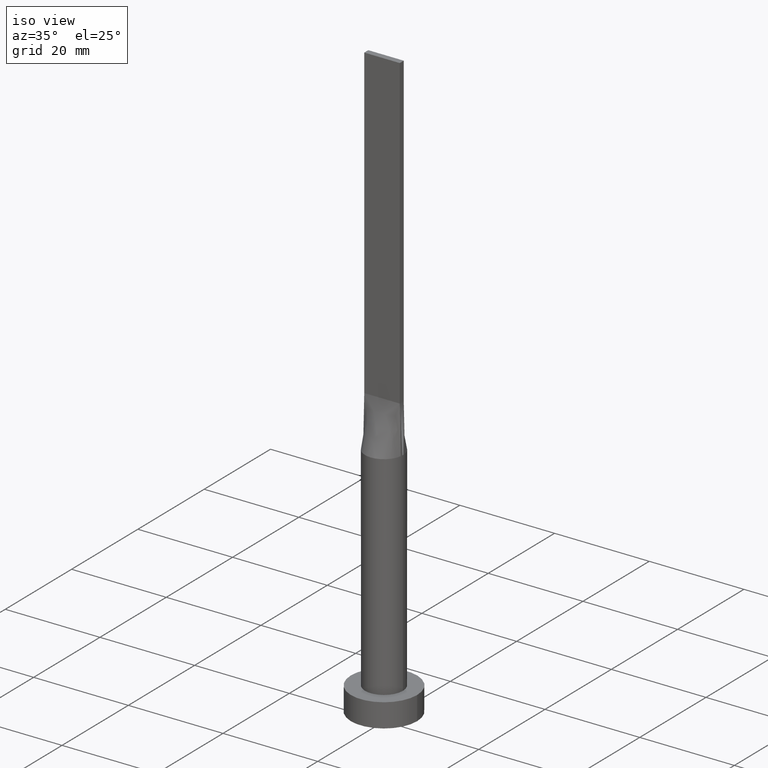
[diagram: clean part render]
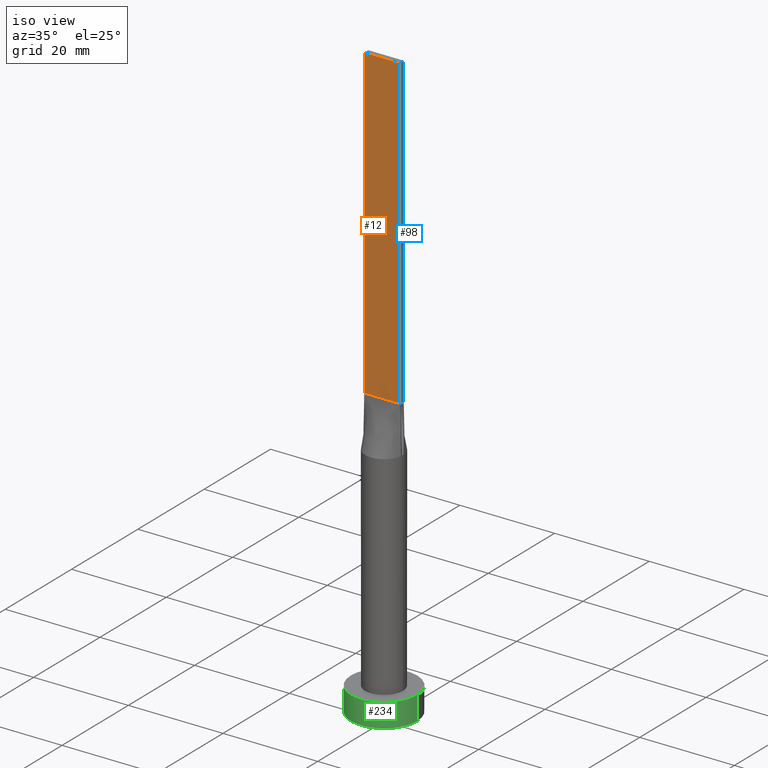
[diagram: same view with three faces highlighted in distinct colors, each labeled with its STEP entity id]
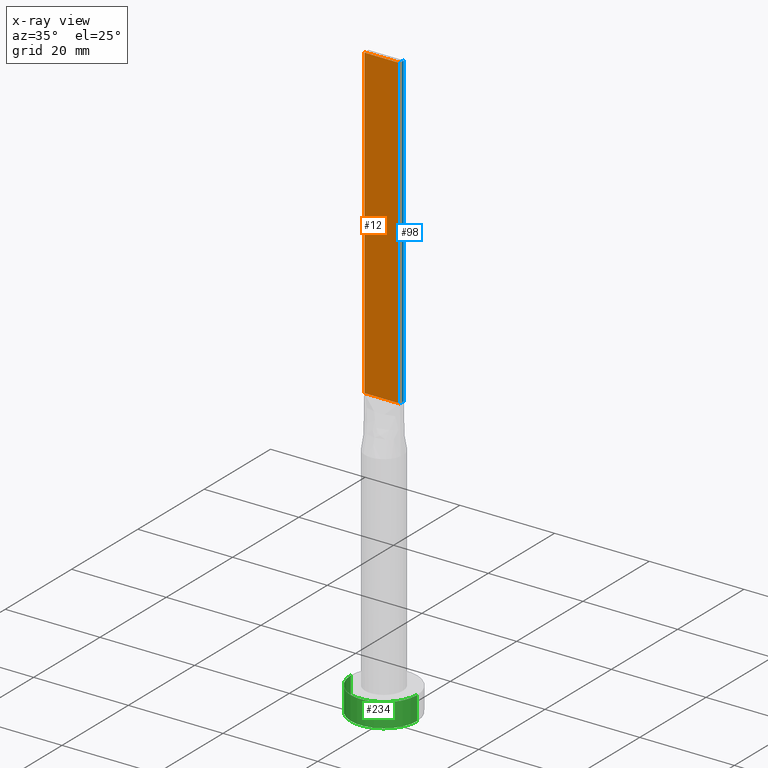
[diagram: x-ray of the same camera — body ghosted, the three highlighted faces saturated]
A machine part, iso view with three faces highlighted in distinct colors.
The next image is the same camera in x-ray (body ghosted, the three faces saturated) — at least one of them is partly hidden behind the body in this view.
Their STEP definitions:

[orange] entity #12 — the highlighted planar face has unit normal (0, 1, -0).
#3 = DIRECTION ( 'NONE',  ( 5.782411586589357392E-17, 1.000000000000000000, -0.000000000000000000 ) ) ;
#11 = VERTEX_POINT ( 'NONE', #132 ) ;
#12 = ADVANCED_FACE ( 'NONE', ( #534 ), #226, .F. ) ;
#72 = CARTESIAN_POINT ( 'NONE',  ( -3.750000000000000000, -0.5999999999999993117, 60.00000000000000000 ) ) ;
#77 = EDGE_CURVE ( 'NONE', #480, #303, #376, .T. ) ;
#103 = CARTESIAN_POINT ( 'NONE',  ( -3.750000000000000000, -0.5999999999999993117, 125.0000000000000000 ) ) ;
#109 = LINE ( 'NONE', #196, #453 ) ;
#123 = EDGE_CURVE ( 'NONE', #141, #11, #109, .T. ) ;
#127 = LINE ( 'NONE', #377, #260 ) ;
#132 = CARTESIAN_POINT ( 'NONE',  ( 3.750000000000000000, -0.5999999999999997558, 60.00000000000000000 ) ) ;
#141 = VERTEX_POINT ( 'NONE', #272 ) ;
#148 = AXIS2_PLACEMENT_3D ( 'NONE', #351, #3, #231 ) ;
#168 = DIRECTION ( 'NONE',  ( 1.000000000000000000, -5.782411586589357392E-17, 0.000000000000000000 ) ) ;
#196 = CARTESIAN_POINT ( 'NONE',  ( 3.750000000000000000, -0.5999999999999997558, 125.0000000000000000 ) ) ;
#199 = DIRECTION ( 'NONE',  ( -0.000000000000000000, -0.000000000000000000, -1.000000000000000000 ) ) ;
#226 = PLANE ( 'NONE',  #148 ) ;
#227 = EDGE_LOOP ( 'NONE', ( #341, #247, #338, #392 ) ) ;
#231 = DIRECTION ( 'NONE',  ( -1.000000000000000000, 5.782411586589357392E-17, 0.000000000000000000 ) ) ;
#240 = LINE ( 'NONE', #411, #572 ) ;
#247 = ORIENTED_EDGE ( 'NONE', *, *, #123, .F. ) ;
#260 = VECTOR ( 'NONE', #168, 1000.000000000000000 ) ;
#272 = CARTESIAN_POINT ( 'NONE',  ( 3.750000000000000000, -0.5999999999999997558, 125.0000000000000000 ) ) ;
#289 = VECTOR ( 'NONE', #199, 1000.000000000000000 ) ;
#303 = VERTEX_POINT ( 'NONE', #72 ) ;
#338 = ORIENTED_EDGE ( 'NONE', *, *, #362, .F. ) ;
#341 = ORIENTED_EDGE ( 'NONE', *, *, #538, .T. ) ;
#351 = CARTESIAN_POINT ( 'NONE',  ( -3.750000000000000000, -0.5999999999999993117, 125.0000000000000000 ) ) ;
#362 = EDGE_CURVE ( 'NONE', #480, #141, #127, .T. ) ;
#376 = LINE ( 'NONE', #103, #289 ) ;
#377 = CARTESIAN_POINT ( 'NONE',  ( -3.750000000000000000, -0.5999999999999993117, 125.0000000000000000 ) ) ;
#392 = ORIENTED_EDGE ( 'NONE', *, *, #77, .T. ) ;
#411 = CARTESIAN_POINT ( 'NONE',  ( -3.750000000000000000, -0.5999999999999993117, 60.00000000000000000 ) ) ;
#413 = DIRECTION ( 'NONE',  ( 1.000000000000000000, -5.782411586589357392E-17, 0.000000000000000000 ) ) ;
#453 = VECTOR ( 'NONE', #504, 1000.000000000000000 ) ;
#480 = VERTEX_POINT ( 'NONE', #539 ) ;
#504 = DIRECTION ( 'NONE',  ( -0.000000000000000000, -0.000000000000000000, -1.000000000000000000 ) ) ;
#534 = FACE_OUTER_BOUND ( 'NONE', #227, .T. ) ;
#538 = EDGE_CURVE ( 'NONE', #303, #11, #240, .T. ) ;
#539 = CARTESIAN_POINT ( 'NONE',  ( -3.750000000000000000, -0.5999999999999993117, 125.0000000000000000 ) ) ;
#572 = VECTOR ( 'NONE', #413, 1000.000000000000000 ) ;

[blue] entity #98 — the highlighted planar face has unit normal (-1, 0, 0).
#11 = VERTEX_POINT ( 'NONE', #132 ) ;
#19 = EDGE_CURVE ( 'NONE', #141, #424, #537, .T. ) ;
#21 = LINE ( 'NONE', #51, #210 ) ;
#51 = CARTESIAN_POINT ( 'NONE',  ( 3.750000000000000000, 0.6000000000000001998, 60.00000000000000000 ) ) ;
#80 = VECTOR ( 'NONE', #319, 1000.000000000000000 ) ;
#89 = CARTESIAN_POINT ( 'NONE',  ( 3.750000000000000000, 0.6000000000000001998, 60.00000000000000000 ) ) ;
#98 = ADVANCED_FACE ( 'NONE', ( #150 ), #515, .F. ) ;
#109 = LINE ( 'NONE', #196, #453 ) ;
#123 = EDGE_CURVE ( 'NONE', #141, #11, #109, .T. ) ;
#131 = CARTESIAN_POINT ( 'NONE',  ( 3.750000000000000000, 0.6000000000000001998, 125.0000000000000000 ) ) ;
#132 = CARTESIAN_POINT ( 'NONE',  ( 3.750000000000000000, -0.5999999999999997558, 60.00000000000000000 ) ) ;
#141 = VERTEX_POINT ( 'NONE', #272 ) ;
#150 = FACE_OUTER_BOUND ( 'NONE', #561, .T. ) ;
#152 = DIRECTION ( 'NONE',  ( 0.000000000000000000, 0.000000000000000000, 1.000000000000000000 ) ) ;
#196 = CARTESIAN_POINT ( 'NONE',  ( 3.750000000000000000, -0.5999999999999997558, 125.0000000000000000 ) ) ;
#198 = EDGE_CURVE ( 'NONE', #424, #437, #331, .T. ) ;
#202 = CARTESIAN_POINT ( 'NONE',  ( 3.750000000000000000, 0.6000000000000001998, 125.0000000000000000 ) ) ;
#210 = VECTOR ( 'NONE', #556, 1000.000000000000000 ) ;
#268 = VECTOR ( 'NONE', #502, 1000.000000000000000 ) ;
#272 = CARTESIAN_POINT ( 'NONE',  ( 3.750000000000000000, -0.5999999999999997558, 125.0000000000000000 ) ) ;
#276 = DIRECTION ( 'NONE',  ( -1.000000000000000000, 0.000000000000000000, 0.000000000000000000 ) ) ;
#319 = DIRECTION ( 'NONE',  ( 0.000000000000000000, 1.000000000000000000, 0.000000000000000000 ) ) ;
#331 = LINE ( 'NONE', #202, #268 ) ;
#336 = ORIENTED_EDGE ( 'NONE', *, *, #19, .F. ) ;
#356 = ORIENTED_EDGE ( 'NONE', *, *, #123, .T. ) ;
#424 = VERTEX_POINT ( 'NONE', #131 ) ;
#437 = VERTEX_POINT ( 'NONE', #89 ) ;
#453 = VECTOR ( 'NONE', #504, 1000.000000000000000 ) ;
#494 = AXIS2_PLACEMENT_3D ( 'NONE', #544, #276, #152 ) ;
#500 = CARTESIAN_POINT ( 'NONE',  ( 3.750000000000000000, -0.5999999999999997558, 125.0000000000000000 ) ) ;
#502 = DIRECTION ( 'NONE',  ( -0.000000000000000000, -0.000000000000000000, -1.000000000000000000 ) ) ;
#504 = DIRECTION ( 'NONE',  ( -0.000000000000000000, -0.000000000000000000, -1.000000000000000000 ) ) ;
#515 = PLANE ( 'NONE',  #494 ) ;
#519 = ORIENTED_EDGE ( 'NONE', *, *, #554, .T. ) ;
#531 = ORIENTED_EDGE ( 'NONE', *, *, #198, .F. ) ;
#537 = LINE ( 'NONE', #500, #80 ) ;
#544 = CARTESIAN_POINT ( 'NONE',  ( 3.750000000000000000, -0.5999999999999997558, 125.0000000000000000 ) ) ;
#554 = EDGE_CURVE ( 'NONE', #11, #437, #21, .T. ) ;
#556 = DIRECTION ( 'NONE',  ( -0.000000000000000000, 1.000000000000000000, -0.000000000000000000 ) ) ;
#561 = EDGE_LOOP ( 'NONE', ( #519, #531, #336, #356 ) ) ;

[green] entity #234 — the highlighted cylindrical surface (partial cylindrical patch) has radius 7 mm, axis along (-0, -0, -1).
#17 = CARTESIAN_POINT ( 'NONE',  ( -7.000000000000000000, 0.000000000000000000, 5.000000000000000000 ) ) ;
#18 = DIRECTION ( 'NONE',  ( 0.000000000000000000, 0.000000000000000000, 1.000000000000000000 ) ) ;
#30 = FACE_OUTER_BOUND ( 'NONE', #512, .T. ) ;
#40 = VERTEX_POINT ( 'NONE', #316 ) ;
#41 = VECTOR ( 'NONE', #550, 1000.000000000000000 ) ;
#54 = EDGE_CURVE ( 'NONE', #40, #383, #394, .T. ) ;
#61 = VECTOR ( 'NONE', #147, 1000.000000000000000 ) ;
#74 = CYLINDRICAL_SURFACE ( 'NONE', #244, 7.000000000000000000 ) ;
#101 = CIRCLE ( 'NONE', #422, 7.000000000000000000 ) ;
#118 = EDGE_CURVE ( 'NONE', #40, #249, #458, .T. ) ;
#130 = CARTESIAN_POINT ( 'NONE',  ( 0.000000000000000000, 0.000000000000000000, 5.000000000000000000 ) ) ;
#133 = EDGE_CURVE ( 'NONE', #249, #454, #101, .T. ) ;
#147 = DIRECTION ( 'NONE',  ( -0.000000000000000000, -0.000000000000000000, -1.000000000000000000 ) ) ;
#158 = CARTESIAN_POINT ( 'NONE',  ( 0.000000000000000000, 0.000000000000000000, 0.000000000000000000 ) ) ;
#166 = ORIENTED_EDGE ( 'NONE', *, *, #54, .F. ) ;
#176 = EDGE_CURVE ( 'NONE', #383, #454, #233, .T. ) ;
#233 = LINE ( 'NONE', #328, #41 ) ;
#234 = ADVANCED_FACE ( 'NONE', ( #30 ), #74, .T. ) ;
#244 = AXIS2_PLACEMENT_3D ( 'NONE', #435, #479, #570 ) ;
#249 = VERTEX_POINT ( 'NONE', #388 ) ;
#302 = AXIS2_PLACEMENT_3D ( 'NONE', #130, #395, #359 ) ;
#312 = CARTESIAN_POINT ( 'NONE',  ( 7.000000000000000000, 8.572527594031473190E-16, 0.000000000000000000 ) ) ;
#316 = CARTESIAN_POINT ( 'NONE',  ( -7.000000000000000000, 0.000000000000000000, 5.000000000000000000 ) ) ;
#320 = ORIENTED_EDGE ( 'NONE', *, *, #176, .F. ) ;
#328 = CARTESIAN_POINT ( 'NONE',  ( 7.000000000000000000, 8.572527594031473190E-16, 5.000000000000000000 ) ) ;
#359 = DIRECTION ( 'NONE',  ( 1.000000000000000000, 0.000000000000000000, 0.000000000000000000 ) ) ;
#372 = DIRECTION ( 'NONE',  ( 1.000000000000000000, 0.000000000000000000, 0.000000000000000000 ) ) ;
#383 = VERTEX_POINT ( 'NONE', #563 ) ;
#388 = CARTESIAN_POINT ( 'NONE',  ( -7.000000000000000000, 0.000000000000000000, 0.000000000000000000 ) ) ;
#394 = CIRCLE ( 'NONE', #302, 7.000000000000000000 ) ;
#395 = DIRECTION ( 'NONE',  ( 0.000000000000000000, 0.000000000000000000, 1.000000000000000000 ) ) ;
#422 = AXIS2_PLACEMENT_3D ( 'NONE', #158, #18, #372 ) ;
#435 = CARTESIAN_POINT ( 'NONE',  ( 0.000000000000000000, 0.000000000000000000, 5.000000000000000000 ) ) ;
#454 = VERTEX_POINT ( 'NONE', #312 ) ;
#458 = LINE ( 'NONE', #17, #61 ) ;
#479 = DIRECTION ( 'NONE',  ( -0.000000000000000000, -0.000000000000000000, -1.000000000000000000 ) ) ;
#512 = EDGE_LOOP ( 'NONE', ( #320, #166, #574, #571 ) ) ;
#550 = DIRECTION ( 'NONE',  ( -0.000000000000000000, -0.000000000000000000, -1.000000000000000000 ) ) ;
#563 = CARTESIAN_POINT ( 'NONE',  ( 7.000000000000000000, 8.572527594031473190E-16, 5.000000000000000000 ) ) ;
#570 = DIRECTION ( 'NONE',  ( -1.000000000000000000, 0.000000000000000000, 0.000000000000000000 ) ) ;
#571 = ORIENTED_EDGE ( 'NONE', *, *, #133, .T. ) ;
#574 = ORIENTED_EDGE ( 'NONE', *, *, #118, .T. ) ;